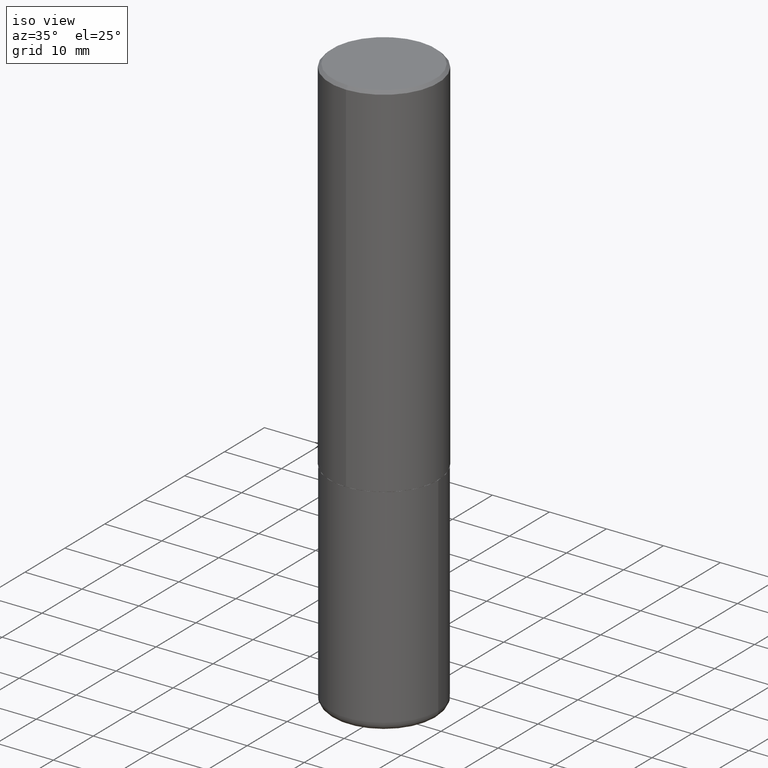
[diagram: clean part render]
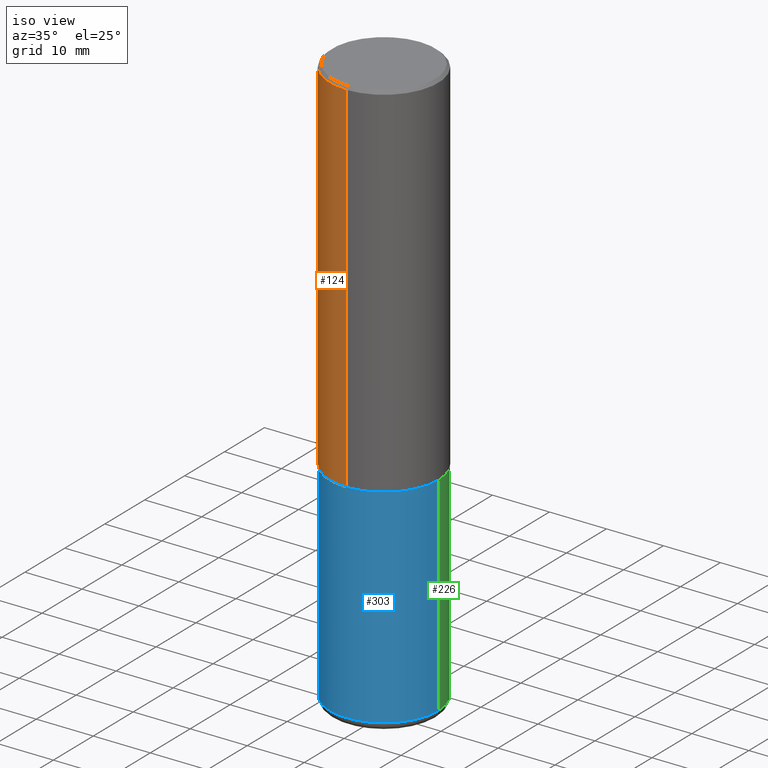
[diagram: same view with three faces highlighted in distinct colors, each labeled with its STEP entity id]
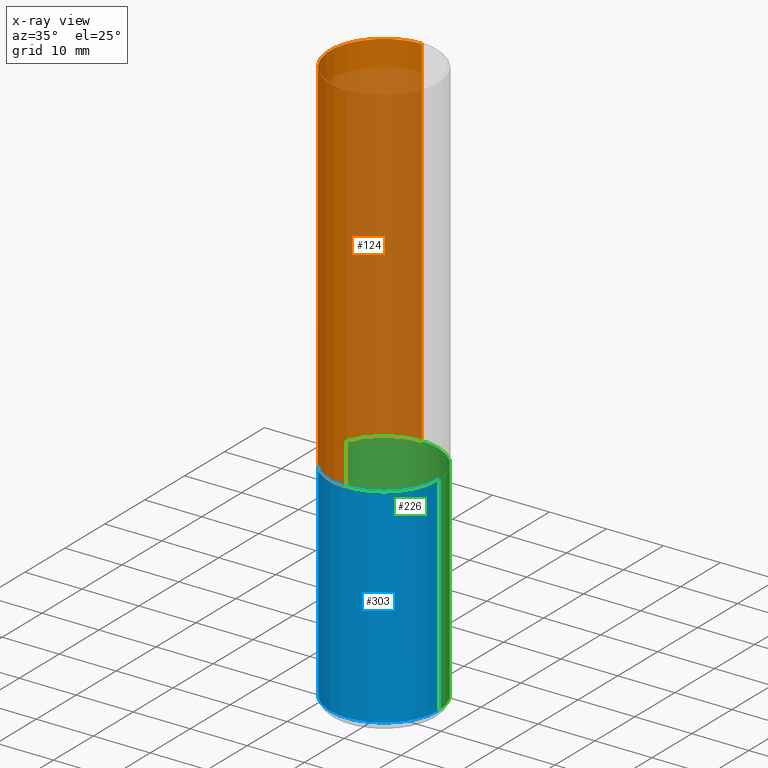
[diagram: x-ray of the same camera — body ghosted, the three highlighted faces saturated]
A machine part, iso view with three faces highlighted in distinct colors.
The next image is the same camera in x-ray (body ghosted, the three faces saturated) — at least one of them is partly hidden behind the body in this view.
Their STEP definitions:

[orange] entity #124 — the highlighted cylindrical surface (partial cylindrical patch) has radius 9.525 mm, axis along (-0, 0, 1).
#5 = AXIS2_PLACEMENT_3D ( 'NONE', #94, #37, #357 ) ;
#16 = EDGE_CURVE ( 'NONE', #314, #366, #408, .T. ) ;
#37 = DIRECTION ( 'NONE',  ( -2.444544534276841438E-29, 3.492804948822114088E-15, 1.000000000000000000 ) ) ;
#39 = DIRECTION ( 'NONE',  ( -2.444544534276841158E-29, 3.492804948822114482E-15, 1.000000000000000000 ) ) ;
#47 = AXIS2_PLACEMENT_3D ( 'NONE', #207, #410, #374 ) ;
#60 = CIRCLE ( 'NONE', #214, 0.3750000000000002776 ) ;
#63 = FACE_OUTER_BOUND ( 'NONE', #397, .T. ) ;
#76 = VECTOR ( 'NONE', #115, 39.37007874015748143 ) ;
#93 = VECTOR ( 'NONE', #39, 39.37007874015748143 ) ;
#94 = CARTESIAN_POINT ( 'NONE',  ( 0.000000000000000000, 0.000000000000000000, 0.000000000000000000 ) ) ;
#103 = ORIENTED_EDGE ( 'NONE', *, *, #212, .F. ) ;
#113 = CARTESIAN_POINT ( 'NONE',  ( -2.618611004132290852E-15, -0.3750000000000090483, -2.498999999999998778 ) ) ;
#115 = DIRECTION ( 'NONE',  ( -2.444544534276841158E-29, 3.492804948822114482E-15, 1.000000000000000000 ) ) ;
#124 = ADVANCED_FACE ( 'NONE', ( #63 ), #353, .T. ) ;
#139 = CARTESIAN_POINT ( 'NONE',  ( 6.108916791157826464E-29, -8.728519567106462304E-15, -2.498999999999999666 ) ) ;
#172 = VERTEX_POINT ( 'NONE', #359 ) ;
#178 = CIRCLE ( 'NONE', #47, 0.3750000000000000555 ) ;
#188 = CARTESIAN_POINT ( 'NONE',  ( 2.664535259100408040E-15, 0.3749999999999915623, -2.499000000000000998 ) ) ;
#207 = CARTESIAN_POINT ( 'NONE',  ( 4.889089068553703440E-31, -6.985609897644257463E-17, -0.02000000000000008715 ) ) ;
#212 = EDGE_CURVE ( 'NONE', #223, #172, #259, .T. ) ;
#214 = AXIS2_PLACEMENT_3D ( 'NONE', #139, #272, #371 ) ;
#223 = VERTEX_POINT ( 'NONE', #188 ) ;
#259 = LINE ( 'NONE', #417, #93 ) ;
#272 = DIRECTION ( 'NONE',  ( -2.444544534276841438E-29, 3.492804948822114088E-15, 1.000000000000000000 ) ) ;
#281 = ORIENTED_EDGE ( 'NONE', *, *, #355, .T. ) ;
#314 = VERTEX_POINT ( 'NONE', #113 ) ;
#340 = EDGE_CURVE ( 'NONE', #172, #366, #178, .T. ) ;
#351 = ORIENTED_EDGE ( 'NONE', *, *, #16, .T. ) ;
#353 = CYLINDRICAL_SURFACE ( 'NONE', #5, 0.3750000000000001665 ) ;
#355 = EDGE_CURVE ( 'NONE', #223, #314, #60, .T. ) ;
#357 = DIRECTION ( 'NONE',  ( -6.982962677686266711E-15, -1.000000000000000000, 3.492804948822114482E-15 ) ) ;
#359 = CARTESIAN_POINT ( 'NONE',  ( 2.618611004132350411E-15, 0.3749999999999999445, -0.02000000000000139513 ) ) ;
#366 = VERTEX_POINT ( 'NONE', #400 ) ;
#371 = DIRECTION ( 'NONE',  ( -6.982962677686266711E-15, -1.000000000000000000, 2.913971193241878794E-15 ) ) ;
#374 = DIRECTION ( 'NONE',  ( -6.982962677686265922E-15, -1.000000000000000000, 3.494488891895536035E-15 ) ) ;
#375 = CARTESIAN_POINT ( 'NONE',  ( -2.618611004132351200E-15, -0.3750000000000001665, 1.309801855808293473E-15 ) ) ;
#397 = EDGE_LOOP ( 'NONE', ( #103, #281, #351, #401 ) ) ;
#400 = CARTESIAN_POINT ( 'NONE',  ( -2.572686749164323547E-15, -0.3750000000000001110, -0.01999999999999877570 ) ) ;
#401 = ORIENTED_EDGE ( 'NONE', *, *, #340, .F. ) ;
#408 = LINE ( 'NONE', #375, #76 ) ;
#410 = DIRECTION ( 'NONE',  ( -2.444544534276841438E-29, 3.492804948822114088E-15, 1.000000000000000000 ) ) ;
#417 = CARTESIAN_POINT ( 'NONE',  ( 2.664535259100376486E-15, 0.3750000000000001665, -1.309801855808293473E-15 ) ) ;

[blue] entity #303 — the highlighted cylindrical surface (partial cylindrical patch) has radius 9.525 mm, axis along (-0, 0, 1).
#20 = DIRECTION ( 'NONE',  ( 1.000000000000000000, -6.982962677686265922E-15, 4.876176775795935793E-29 ) ) ;
#23 = CIRCLE ( 'NONE', #184, 0.3750000000000000555 ) ;
#25 = CARTESIAN_POINT ( 'NONE',  ( 0.000000000000000000, 0.000000000000000000, 0.000000000000000000 ) ) ;
#32 = LINE ( 'NONE', #288, #305 ) ;
#45 = AXIS2_PLACEMENT_3D ( 'NONE', #260, #57, #215 ) ;
#57 = DIRECTION ( 'NONE',  ( -2.445468806185136597E-29, 3.491481338843145583E-15, 1.000000000000000000 ) ) ;
#64 = ORIENTED_EDGE ( 'NONE', *, *, #368, .T. ) ;
#67 = DIRECTION ( 'NONE',  ( 1.000000000000000000, -6.982962677686264344E-15, 0.000000000000000000 ) ) ;
#69 = AXIS2_PLACEMENT_3D ( 'NONE', #25, #176, #20 ) ;
#71 = EDGE_CURVE ( 'NONE', #231, #315, #275, .T. ) ;
#75 = EDGE_LOOP ( 'NONE', ( #77, #64, #140, #208 ) ) ;
#77 = ORIENTED_EDGE ( 'NONE', *, *, #128, .F. ) ;
#87 = DIRECTION ( 'NONE',  ( -2.445468806185136597E-29, 3.491481338843145583E-15, 1.000000000000000000 ) ) ;
#112 = DIRECTION ( 'NONE',  ( -2.445468806185136877E-29, 3.491481338843145188E-15, 1.000000000000000000 ) ) ;
#121 = DIRECTION ( 'NONE',  ( -2.445468806185136877E-29, 3.491481338843145188E-15, 1.000000000000000000 ) ) ;
#128 = EDGE_CURVE ( 'NONE', #200, #403, #32, .T. ) ;
#138 = CIRCLE ( 'NONE', #45, 0.3750000000000001110 ) ;
#140 = ORIENTED_EDGE ( 'NONE', *, *, #71, .T. ) ;
#143 = CARTESIAN_POINT ( 'NONE',  ( 0.3750000000000000555, -1.134731435124021180E-14, -2.499999999999999556 ) ) ;
#151 = CARTESIAN_POINT ( 'NONE',  ( 0.3750000000000002220, -1.637504747917434403E-14, -3.939999999999999947 ) ) ;
#176 = DIRECTION ( 'NONE',  ( -2.445468806185136597E-29, 3.491481338843145583E-15, 1.000000000000000000 ) ) ;
#184 = AXIS2_PLACEMENT_3D ( 'NONE', #413, #87, #67 ) ;
#190 = CARTESIAN_POINT ( 'NONE',  ( -0.3750000000000002220, -1.109190121594161832E-14, -3.939999999999999947 ) ) ;
#197 = EDGE_CURVE ( 'NONE', #403, #315, #23, .T. ) ;
#200 = VERTEX_POINT ( 'NONE', #190 ) ;
#204 = CYLINDRICAL_SURFACE ( 'NONE', #69, 0.3750000000000001110 ) ;
#208 = ORIENTED_EDGE ( 'NONE', *, *, #197, .F. ) ;
#215 = DIRECTION ( 'NONE',  ( 1.000000000000000000, -6.982962677686265922E-15, 0.000000000000000000 ) ) ;
#231 = VERTEX_POINT ( 'NONE', #151 ) ;
#254 = CARTESIAN_POINT ( 'NONE',  ( -0.3750000000000000555, -8.578034651974552203E-15, -2.499999999999999556 ) ) ;
#256 = VECTOR ( 'NONE', #112, 39.37007874015748143 ) ;
#260 = CARTESIAN_POINT ( 'NONE',  ( 9.635147096369438236E-29, -1.375643647504199401E-14, -3.939999999999999947 ) ) ;
#275 = LINE ( 'NONE', #406, #256 ) ;
#288 = CARTESIAN_POINT ( 'NONE',  ( -0.3750000000000001110, 2.664535259100376486E-15, -1.844600658845590159E-29 ) ) ;
#303 = ADVANCED_FACE ( 'NONE', ( #313 ), #204, .T. ) ;
#305 = VECTOR ( 'NONE', #121, 39.37007874015748143 ) ;
#313 = FACE_OUTER_BOUND ( 'NONE', #75, .T. ) ;
#315 = VERTEX_POINT ( 'NONE', #143 ) ;
#368 = EDGE_CURVE ( 'NONE', #200, #231, #138, .T. ) ;
#403 = VERTEX_POINT ( 'NONE', #254 ) ;
#406 = CARTESIAN_POINT ( 'NONE',  ( 0.3750000000000001110, -2.618611004132350411E-15, 1.828566290923476483E-29 ) ) ;
#413 = CARTESIAN_POINT ( 'NONE',  ( 6.113672015462840371E-29, -8.728703347107863365E-15, -2.499999999999999556 ) ) ;

[green] entity #226 — the highlighted cylindrical surface (partial cylindrical patch) has radius 9.525 mm, axis along (-0, 0, 1).
#1 = DIRECTION ( 'NONE',  ( -2.445468806185136597E-29, 3.491481338843145583E-15, 1.000000000000000000 ) ) ;
#7 = CARTESIAN_POINT ( 'NONE',  ( 6.113672015462840371E-29, -8.728703347107863365E-15, -2.499999999999999556 ) ) ;
#32 = LINE ( 'NONE', #288, #305 ) ;
#54 = DIRECTION ( 'NONE',  ( 1.000000000000000000, -6.982962677686265922E-15, 0.000000000000000000 ) ) ;
#55 = ORIENTED_EDGE ( 'NONE', *, *, #71, .F. ) ;
#61 = ORIENTED_EDGE ( 'NONE', *, *, #337, .T. ) ;
#71 = EDGE_CURVE ( 'NONE', #231, #315, #275, .T. ) ;
#72 = ORIENTED_EDGE ( 'NONE', *, *, #128, .T. ) ;
#90 = DIRECTION ( 'NONE',  ( 1.000000000000000000, -6.982962677686265922E-15, 4.876176775795935793E-29 ) ) ;
#95 = EDGE_LOOP ( 'NONE', ( #61, #72, #317, #55 ) ) ;
#112 = DIRECTION ( 'NONE',  ( -2.445468806185136877E-29, 3.491481338843145188E-15, 1.000000000000000000 ) ) ;
#121 = DIRECTION ( 'NONE',  ( -2.445468806185136877E-29, 3.491481338843145188E-15, 1.000000000000000000 ) ) ;
#128 = EDGE_CURVE ( 'NONE', #200, #403, #32, .T. ) ;
#143 = CARTESIAN_POINT ( 'NONE',  ( 0.3750000000000000555, -1.134731435124021180E-14, -2.499999999999999556 ) ) ;
#151 = CARTESIAN_POINT ( 'NONE',  ( 0.3750000000000002220, -1.637504747917434403E-14, -3.939999999999999947 ) ) ;
#158 = CYLINDRICAL_SURFACE ( 'NONE', #383, 0.3750000000000001110 ) ;
#164 = AXIS2_PLACEMENT_3D ( 'NONE', #345, #239, #54 ) ;
#190 = CARTESIAN_POINT ( 'NONE',  ( -0.3750000000000002220, -1.109190121594161832E-14, -3.939999999999999947 ) ) ;
#200 = VERTEX_POINT ( 'NONE', #190 ) ;
#226 = ADVANCED_FACE ( 'NONE', ( #253 ), #158, .T. ) ;
#231 = VERTEX_POINT ( 'NONE', #151 ) ;
#235 = CIRCLE ( 'NONE', #164, 0.3750000000000001110 ) ;
#239 = DIRECTION ( 'NONE',  ( -2.445468806185136597E-29, 3.491481338843145583E-15, 1.000000000000000000 ) ) ;
#253 = FACE_OUTER_BOUND ( 'NONE', #95, .T. ) ;
#254 = CARTESIAN_POINT ( 'NONE',  ( -0.3750000000000000555, -8.578034651974552203E-15, -2.499999999999999556 ) ) ;
#256 = VECTOR ( 'NONE', #112, 39.37007874015748143 ) ;
#275 = LINE ( 'NONE', #406, #256 ) ;
#277 = AXIS2_PLACEMENT_3D ( 'NONE', #7, #1, #416 ) ;
#288 = CARTESIAN_POINT ( 'NONE',  ( -0.3750000000000001110, 2.664535259100376486E-15, -1.844600658845590159E-29 ) ) ;
#305 = VECTOR ( 'NONE', #121, 39.37007874015748143 ) ;
#315 = VERTEX_POINT ( 'NONE', #143 ) ;
#317 = ORIENTED_EDGE ( 'NONE', *, *, #377, .F. ) ;
#325 = DIRECTION ( 'NONE',  ( -2.445468806185136597E-29, 3.491481338843145583E-15, 1.000000000000000000 ) ) ;
#337 = EDGE_CURVE ( 'NONE', #231, #200, #235, .T. ) ;
#345 = CARTESIAN_POINT ( 'NONE',  ( 9.635147096369438236E-29, -1.375643647504199401E-14, -3.939999999999999947 ) ) ;
#377 = EDGE_CURVE ( 'NONE', #315, #403, #407, .T. ) ;
#383 = AXIS2_PLACEMENT_3D ( 'NONE', #387, #325, #90 ) ;
#387 = CARTESIAN_POINT ( 'NONE',  ( 0.000000000000000000, 0.000000000000000000, 0.000000000000000000 ) ) ;
#403 = VERTEX_POINT ( 'NONE', #254 ) ;
#406 = CARTESIAN_POINT ( 'NONE',  ( 0.3750000000000001110, -2.618611004132350411E-15, 1.828566290923476483E-29 ) ) ;
#407 = CIRCLE ( 'NONE', #277, 0.3750000000000000555 ) ;
#416 = DIRECTION ( 'NONE',  ( 1.000000000000000000, -6.982962677686264344E-15, 0.000000000000000000 ) ) ;